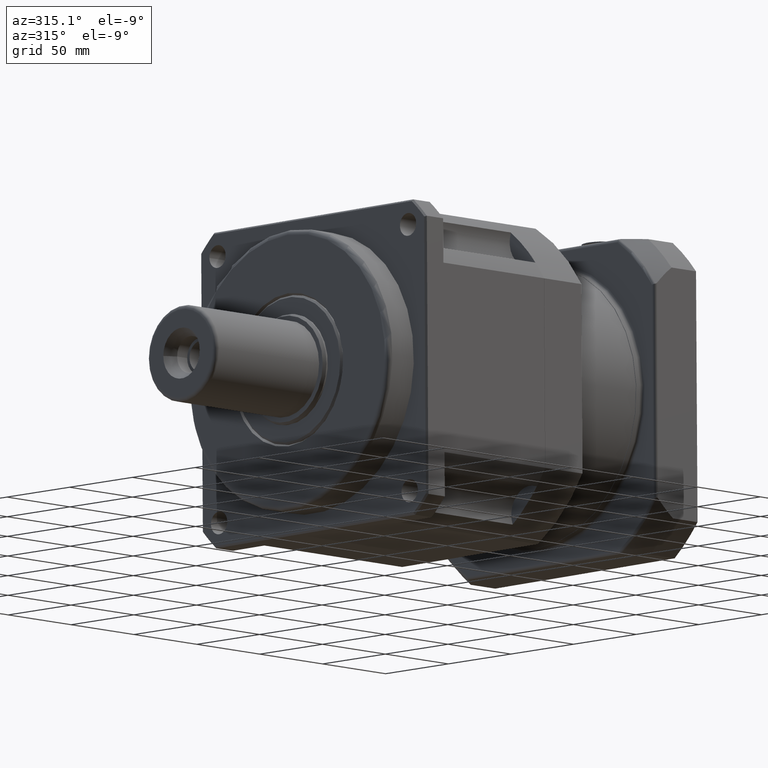
[diagram: clean part render]
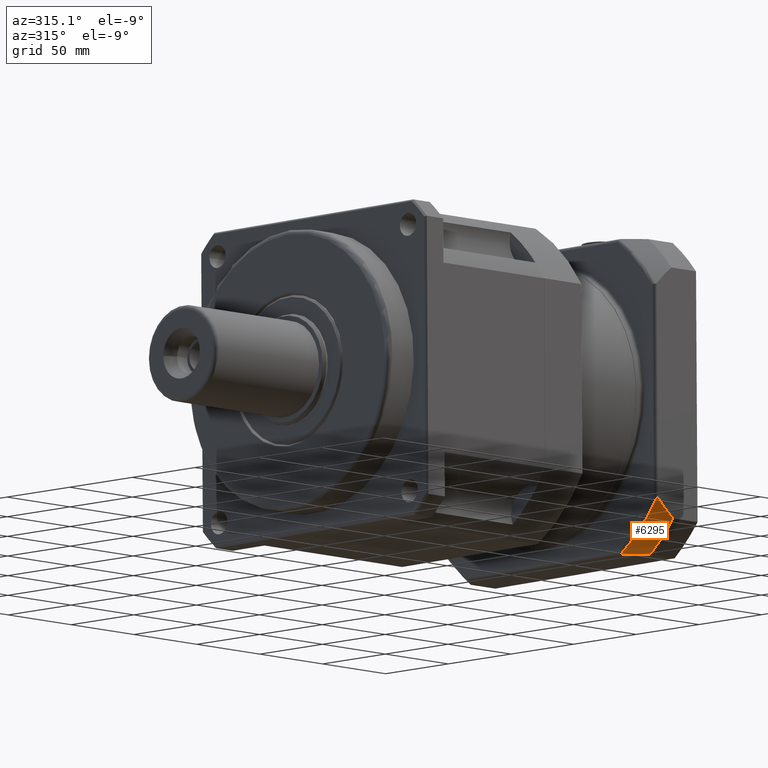
[diagram: same view with one face highlighted and labeled with its STEP entity id]
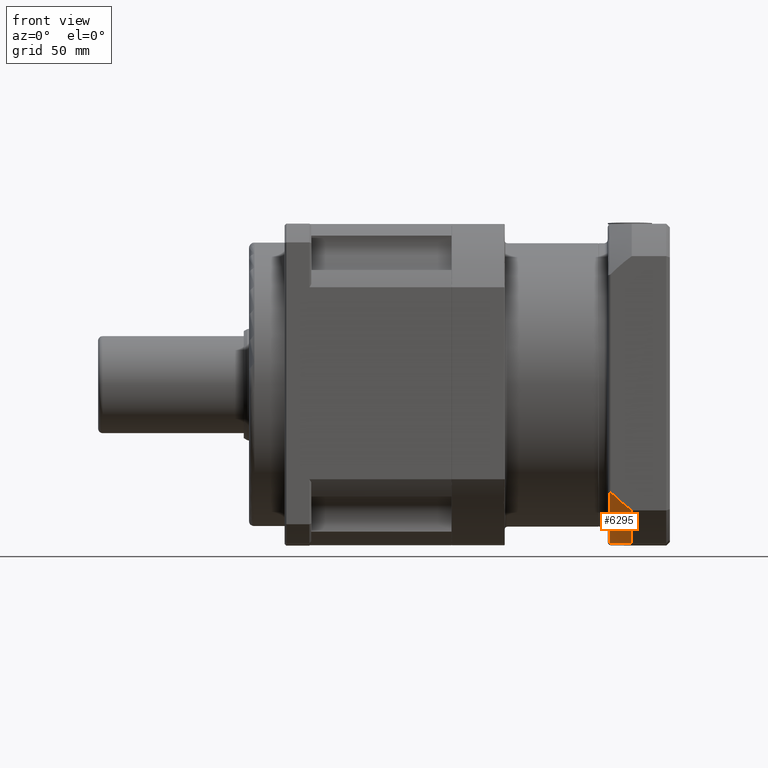
[diagram: same view with one face highlighted and labeled with its STEP entity id]
A machine part, auxiliary view. The second image highlights one B-rep face of the part: STEP entity #6295.
A second angle (front view) of the same face is appended — the face is thin or edge-on in the first view.
In plain terms, the highlighted spherical surface has radius 126 mm.
Its self-contained STEP definition (entity closure, byte-faithful):
#18=SPHERICAL_SURFACE('',#7008,126.);
#89=B_SPLINE_CURVE_WITH_KNOTS('',3,(#10852,#10853,#10854,#10855,#10856,
#10857,#10858,#10859,#10860,#10861),.UNSPECIFIED.,.F.,.F.,(4,2,2,2,4),(0.048211499277612,
0.0600685841585238,0.0984326405449603,0.136796696931397,0.170246655923201),
 .UNSPECIFIED.);
#90=B_SPLINE_CURVE_WITH_KNOTS('',3,(#10864,#10865,#10866,#10867,#10868,
#10869,#10870,#10871,#10872,#10873),.UNSPECIFIED.,.F.,.F.,(4,2,2,2,4),(1.65024295471578,
1.68369291370759,1.72205697009402,1.76042102648046,1.77227811136137),
 .UNSPECIFIED.);
#1571=FACE_OUTER_BOUND('',#2108,.T.);
#2108=EDGE_LOOP('',(#5197,#5198,#5199,#5200,#5201,#5202));
#2535=CIRCLE('',#6947,115.);
#2570=CIRCLE('',#7007,88.1816307401944);
#2571=CIRCLE('',#7009,108.526196025316);
#2572=CIRCLE('',#7010,88.1816307401945);
#3039=VERTEX_POINT('',#10658);
#3040=VERTEX_POINT('',#10660);
#3082=VERTEX_POINT('',#10846);
#3083=VERTEX_POINT('',#10850);
#3084=VERTEX_POINT('',#10851);
#3085=VERTEX_POINT('',#10862);
#3781=EDGE_CURVE('',#3039,#3040,#2535,.T.);
#3827=EDGE_CURVE('',#3040,#3082,#2570,.T.);
#3829=EDGE_CURVE('',#3083,#3084,#89,.T.);
#3830=EDGE_CURVE('',#3085,#3083,#2571,.T.);
#3831=EDGE_CURVE('',#3082,#3085,#90,.T.);
#3832=EDGE_CURVE('',#3084,#3039,#2572,.T.);
#5197=ORIENTED_EDGE('',*,*,#3829,.F.);
#5198=ORIENTED_EDGE('',*,*,#3830,.F.);
#5199=ORIENTED_EDGE('',*,*,#3831,.F.);
#5200=ORIENTED_EDGE('',*,*,#3827,.F.);
#5201=ORIENTED_EDGE('',*,*,#3781,.F.);
#5202=ORIENTED_EDGE('',*,*,#3832,.F.);
#6295=ADVANCED_FACE('',(#1571),#18,.T.);
#6947=AXIS2_PLACEMENT_3D('',#10661,#8468,#8469);
#7007=AXIS2_PLACEMENT_3D('',#10847,#8594,#8595);
#7008=AXIS2_PLACEMENT_3D('',#10849,#8597,#8598);
#7009=AXIS2_PLACEMENT_3D('',#10863,#8599,#8600);
#7010=AXIS2_PLACEMENT_3D('',#10874,#8601,#8602);
#8468=DIRECTION('center_axis',(1.,-8.09975041207195E-17,-3.54145049662604E-16));
#8469=DIRECTION('ref_axis',(-3.5481410443836E-16,-0.00841499871867007,-0.999964593271464));
#8594=DIRECTION('center_axis',(-3.5481410443836E-16,-0.00841499871867007,
-0.999964593271464));
#8595=DIRECTION('ref_axis',(-7.80145061249448E-17,-0.999964593271464,0.00841499871867007));
#8597=DIRECTION('center_axis',(-3.38353683695286E-16,-0.00841499871867001,
-0.999964593271464));
#8598=DIRECTION('ref_axis',(1.,0.,-3.38353683695286E-16));
#8599=DIRECTION('center_axis',(-1.,8.09975041207195E-17,3.54145049662604E-16));
#8600=DIRECTION('ref_axis',(-3.06056045620864E-16,-0.713032047506348,-0.701131442191053));
#8601=DIRECTION('center_axis',(-7.80145061249449E-17,-0.999964593271464,
0.00841499871866987));
#8602=DIRECTION('ref_axis',(3.5481410443836E-16,0.00841499871866987,0.999964593271464));
#10658=CARTESIAN_POINT('',(35.8150658397989,-244.035651012362,-21.6366938892533));
#10660=CARTESIAN_POINT('',(35.8150658397989,-225.780335853466,-40.2018643584936));
#10661=CARTESIAN_POINT('Origin',(35.8150658397989,-153.436415388422,49.1925268064301));
#10846=CARTESIAN_POINT('',(24.302928487223,-215.892472049999,-40.2850736658995));
#10847=CARTESIAN_POINT('Origin',(87.302928487223,-154.193765273102,-40.8042865880017));
#10849=CARTESIAN_POINT('Origin',(87.302928487223,-153.436415388422,49.1925268064301));
#10850=CARTESIAN_POINT('',(23.2867994549649,-243.669659235324,-11.1058722485257));
#10851=CARTESIAN_POINT('',(24.302928487223,-243.952441704956,-11.7488300857867));
#10852=CARTESIAN_POINT('Ctrl Pts',(23.2867994549648,-243.669659235325,-11.1058722485253));
#10853=CARTESIAN_POINT('Ctrl Pts',(23.322123924568,-243.690549272099,-11.1121138739705));
#10854=CARTESIAN_POINT('Ctrl Pts',(23.3571962297553,-243.709828741806,-11.1204546295884));
#10855=CARTESIAN_POINT('Ctrl Pts',(23.5013558626726,-243.784014452947,-11.1621501229718));
#10856=CARTESIAN_POINT('Ctrl Pts',(23.6200459688303,-243.831567663758,-11.2162972800756));
#10857=CARTESIAN_POINT('Ctrl Pts',(23.8495248246158,-243.900719090382,-11.3541033854869));
#10858=CARTESIAN_POINT('Ctrl Pts',(23.960458819935,-243.922707671052,-11.4373239169023));
#10859=CARTESIAN_POINT('Ctrl Pts',(24.1422344953115,-243.946474072595,-11.591257574498));
#10860=CARTESIAN_POINT('Ctrl Pts',(24.2238454084184,-243.951762209223,-11.668084776493));
#10861=CARTESIAN_POINT('Ctrl Pts',(24.302928487223,-243.952441704956,-11.7488300857867));
#10862=CARTESIAN_POINT('',(23.2867994549649,-215.24484621153,-40.0131518407858));
#10863=CARTESIAN_POINT('Origin',(23.2867994549649,-153.436415388422,49.1925268064301));
#10864=CARTESIAN_POINT('Ctrl Pts',(24.302928487223,-215.892472049999,-40.2850736658995));
#10865=CARTESIAN_POINT('Ctrl Pts',(24.2238454084184,-215.811726740706,-40.2857531616325));
#10866=CARTESIAN_POINT('Ctrl Pts',(24.1422344953115,-215.734821423143,-40.2817587297656));
#10867=CARTESIAN_POINT('Ctrl Pts',(23.960458819935,-215.580509591995,-40.2605863054598));
#10868=CARTESIAN_POINT('Ctrl Pts',(23.8495248246158,-215.496930791985,-40.2400013906488));
#10869=CARTESIAN_POINT('Ctrl Pts',(23.6200459688303,-215.357980426156,-40.1731789518374));
#10870=CARTESIAN_POINT('Ctrl Pts',(23.5013558626726,-215.303040645531,-40.1265437399716));
#10871=CARTESIAN_POINT('Ctrl Pts',(23.3571962297553,-215.260102556126,-40.0530702455385));
#10872=CARTESIAN_POINT('Ctrl Pts',(23.3221239245681,-215.251438519825,-40.0339338762008));
#10873=CARTESIAN_POINT('Ctrl Pts',(23.2867994549649,-215.24484621153,-40.013151840786));
#10874=CARTESIAN_POINT('Origin',(87.302928487223,-243.433228782854,49.9498766911104));